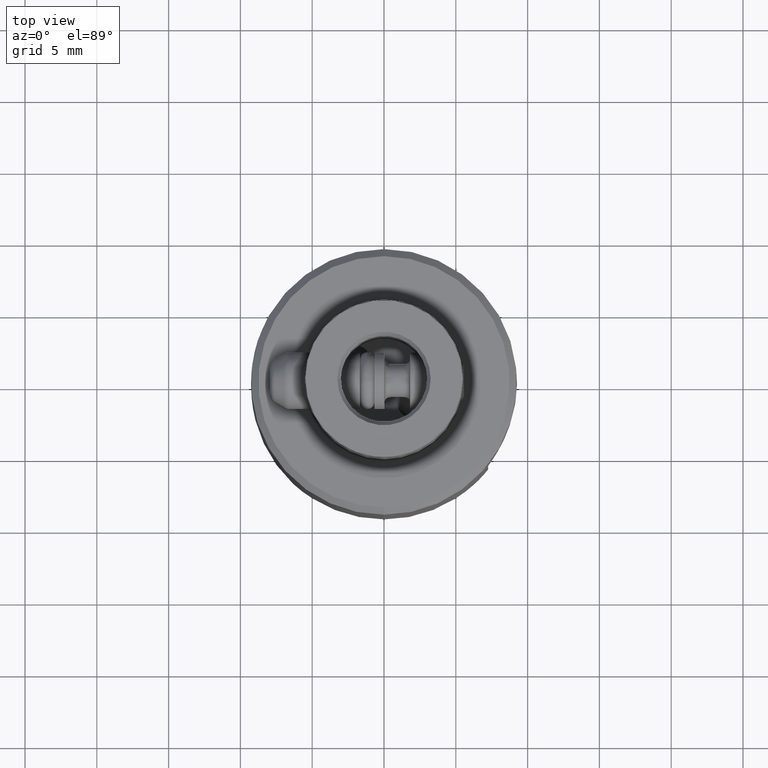
[diagram: clean part render]
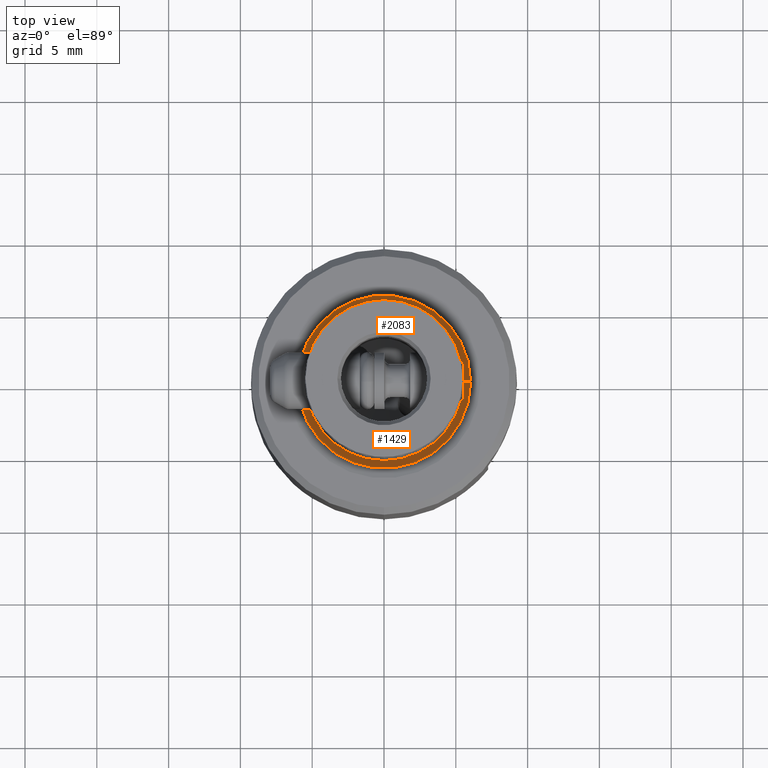
[diagram: same view with one multi-face feature highlighted, each face labeled with its STEP entity id]
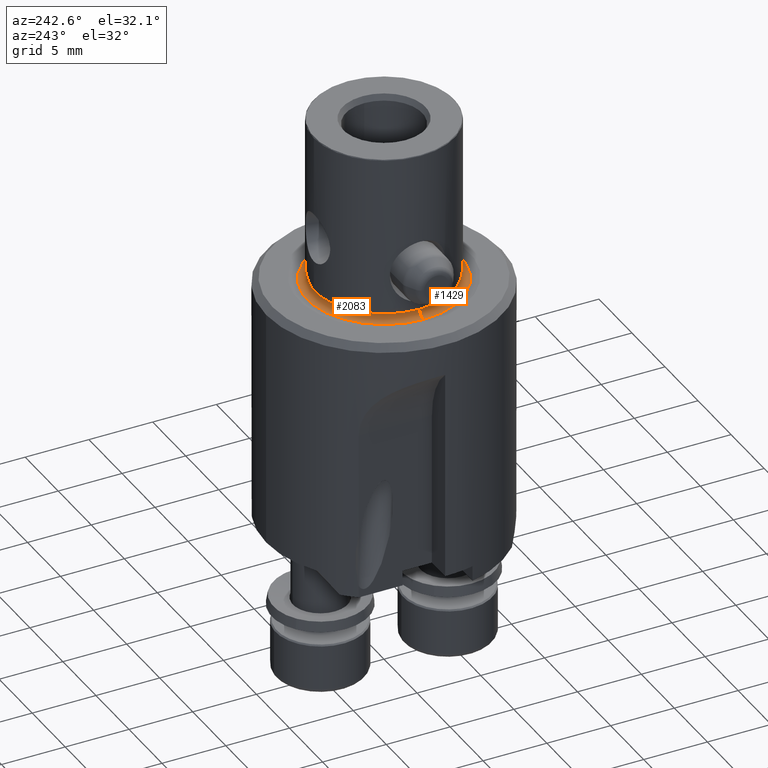
[diagram: same view with one multi-face feature highlighted, each face labeled with its STEP entity id]
A machine part, top view. The highlighted faces form ONE feature: a constant-radius fillet chain: 2 tangent blend faces with common blend radius 0.5 mm. The faces share edges in the B-rep.
A second angle (auxiliary view) of the same feature is appended — it is thin or edge-on in the first view.
Their STEP definitions:
[1] entity #2083 (Torus):
#1313=VERTEX_POINT('NONE',#3489);
#1795=VERTEX_POINT('NONE',#4032);
#1873=EDGE_CURVE('NONE',#1313,#1795,#4119,.T.);
#2083=ADVANCED_FACE('NONE',(#4352),#4353,.F.);
#2401=EDGE_CURVE('NONE',#3201,#1313,#4712,.T.);
#2793=EDGE_CURVE('NONE',#3149,#1795,#5147,.T.);
#3149=VERTEX_POINT('NONE',#5536);
#3169=EDGE_CURVE('NONE',#3201,#3149,#5556,.T.);
#3201=VERTEX_POINT('NONE',#5595);
#3489=CARTESIAN_POINT('',(6.02940952255126,-1.43575937484716E-014,-0.182962913144527));
#4032=CARTESIAN_POINT('',(-6.02940952255126,1.59507630690977E-014,-0.182962913144527));
#4119=CIRCLE('',#7001,6.02940952255126);
#4352=FACE_OUTER_BOUND('',#7370,.T.);
#4353=TOROIDAL_SURFACE('',#7371,5.9,0.499999999999999);
#4712=CIRCLE('',#7928,0.499999999999999);
#5147=CIRCLE('',#8633,0.499999999999999);
#5536=CARTESIAN_POINT('',(-5.4,1.35200932480789E-014,0.300000000000005));
#5556=CIRCLE('',#9267,5.4);
#5595=CARTESIAN_POINT('',(5.4,-1.28588058170148E-014,0.300000000000005));
#7001=AXIS2_PLACEMENT_3D('',#10457,#10458,#10459);
#7370=EDGE_LOOP('',(#10747,#10748,#10749,#10750));
#7371=AXIS2_PLACEMENT_3D('',#10751,#10752,#10753);
#7928=AXIS2_PLACEMENT_3D('',#11217,#11218,#11219);
#8633=AXIS2_PLACEMENT_3D('',#11746,#11747,#11748);
#9267=AXIS2_PLACEMENT_3D('',#12203,#12204,#12205);
#10457=CARTESIAN_POINT('',(0.0,0.0,-0.182962913144527));
#10458=DIRECTION('',(0.0,0.0,1.0));
#10459=DIRECTION('',(1.0,-2.38126033648422E-015,-0.0));
#10747=ORIENTED_EDGE('',*,*,#3169,.F.);
#10748=ORIENTED_EDGE('',*,*,#2401,.T.);
#10749=ORIENTED_EDGE('',*,*,#1873,.T.);
#10750=ORIENTED_EDGE('',*,*,#2793,.F.);
#10751=CARTESIAN_POINT('',(0.0,0.0,0.300000000000005));
#10752=DIRECTION('',(0.0,0.0,1.0));
#10753=DIRECTION('',(1.0,-2.38126033648423E-015,-0.0));
#11217=CARTESIAN_POINT('',(5.9,-1.40494359852569E-014,0.300000000000005));
#11218=DIRECTION('',(-2.38126033648423E-015,-1.0,0.0));
#11219=DIRECTION('',(-1.0,2.38126033648423E-015,0.0));
#11746=CARTESIAN_POINT('',(-5.9,1.47719537340121E-014,0.300000000000005));
#11747=DIRECTION('',(2.50372097186647E-015,1.0,0.0));
#11748=DIRECTION('',(1.0,-2.50372097186647E-015,-0.0));
#12203=CARTESIAN_POINT('',(0.0,0.0,0.300000000000005));
#12204=DIRECTION('',(0.0,-0.0,1.0));
#12205=DIRECTION('',(0.0,1.0,0.0));
[2] entity #1429 (Torus):
#1141=EDGE_CURVE('NONE',#1795,#1313,#3288,.T.);
#1313=VERTEX_POINT('NONE',#3489);
#1429=ADVANCED_FACE('NONE',(#3616),#3617,.F.);
#1795=VERTEX_POINT('NONE',#4032);
#2401=EDGE_CURVE('NONE',#3201,#1313,#4712,.T.);
#2793=EDGE_CURVE('NONE',#3149,#1795,#5147,.T.);
#2923=EDGE_CURVE('NONE',#3149,#3201,#5290,.T.);
#3149=VERTEX_POINT('NONE',#5536);
#3201=VERTEX_POINT('NONE',#5595);
#3288=CIRCLE('',#5699,6.02940952255126);
#3489=CARTESIAN_POINT('',(6.02940952255126,-1.43575937484716E-014,-0.182962913144527));
#3616=FACE_OUTER_BOUND('',#6207,.T.);
#3617=TOROIDAL_SURFACE('',#6208,5.9,0.499999999999999);
#4032=CARTESIAN_POINT('',(-6.02940952255126,1.59507630690977E-014,-0.182962913144527));
#4712=CIRCLE('',#7928,0.499999999999999);
#5147=CIRCLE('',#8633,0.499999999999999);
#5290=CIRCLE('',#8858,5.4);
#5536=CARTESIAN_POINT('',(-5.4,1.35200932480789E-014,0.300000000000005));
#5595=CARTESIAN_POINT('',(5.4,-1.28588058170148E-014,0.300000000000005));
#5699=AXIS2_PLACEMENT_3D('',#9384,#9385,#9386);
#6207=EDGE_LOOP('',(#9797,#9798,#9799,#9800));
#6208=AXIS2_PLACEMENT_3D('',#9801,#9802,#9803);
#7928=AXIS2_PLACEMENT_3D('',#11217,#11218,#11219);
#8633=AXIS2_PLACEMENT_3D('',#11746,#11747,#11748);
#8858=AXIS2_PLACEMENT_3D('',#11912,#11913,#11914);
#9384=CARTESIAN_POINT('',(0.0,0.0,-0.182962913144527));
#9385=DIRECTION('',(0.0,0.0,1.0));
#9386=DIRECTION('',(1.0,-2.38126033648422E-015,-0.0));
#9797=ORIENTED_EDGE('',*,*,#2923,.F.);
#9798=ORIENTED_EDGE('',*,*,#2793,.T.);
#9799=ORIENTED_EDGE('',*,*,#1141,.T.);
#9800=ORIENTED_EDGE('',*,*,#2401,.F.);
#9801=CARTESIAN_POINT('',(0.0,0.0,0.300000000000005));
#9802=DIRECTION('',(0.0,0.0,1.0));
#9803=DIRECTION('',(1.0,-2.38126033648423E-015,-0.0));
#11217=CARTESIAN_POINT('',(5.9,-1.40494359852569E-014,0.300000000000005));
#11218=DIRECTION('',(-2.38126033648423E-015,-1.0,0.0));
#11219=DIRECTION('',(-1.0,2.38126033648423E-015,0.0));
#11746=CARTESIAN_POINT('',(-5.9,1.47719537340121E-014,0.300000000000005));
#11747=DIRECTION('',(2.50372097186647E-015,1.0,0.0));
#11748=DIRECTION('',(1.0,-2.50372097186647E-015,-0.0));
#11912=CARTESIAN_POINT('',(0.0,0.0,0.300000000000005));
#11913=DIRECTION('',(0.0,-0.0,1.0));
#11914=DIRECTION('',(0.0,1.0,0.0));